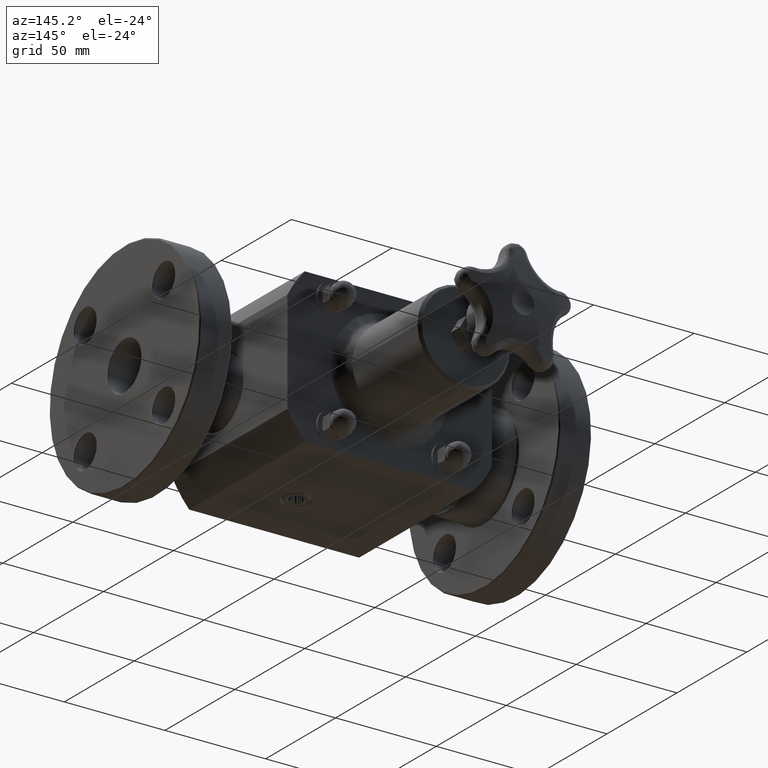
[diagram: clean part render]
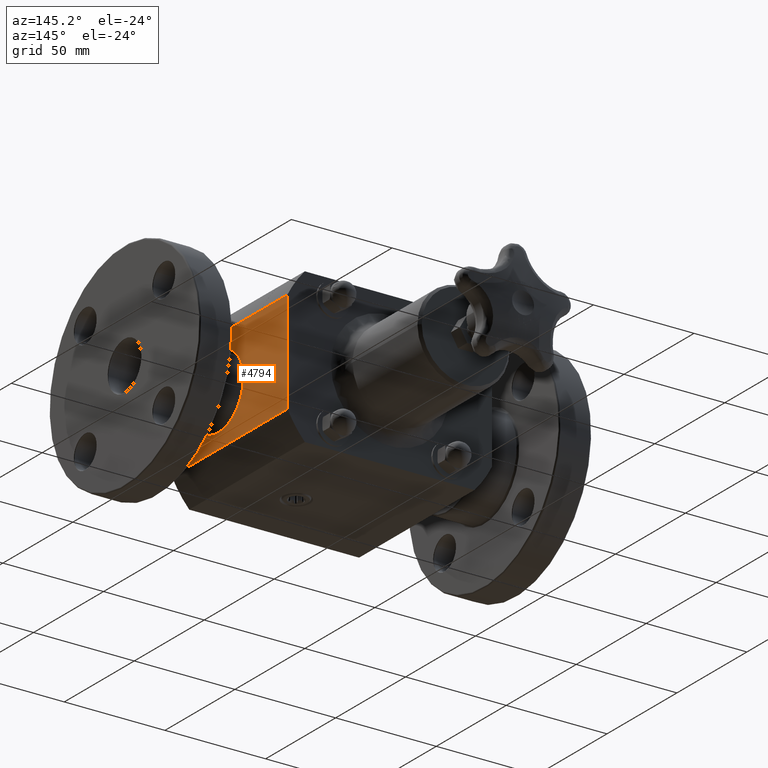
[diagram: same view with one face highlighted and labeled with its STEP entity id]
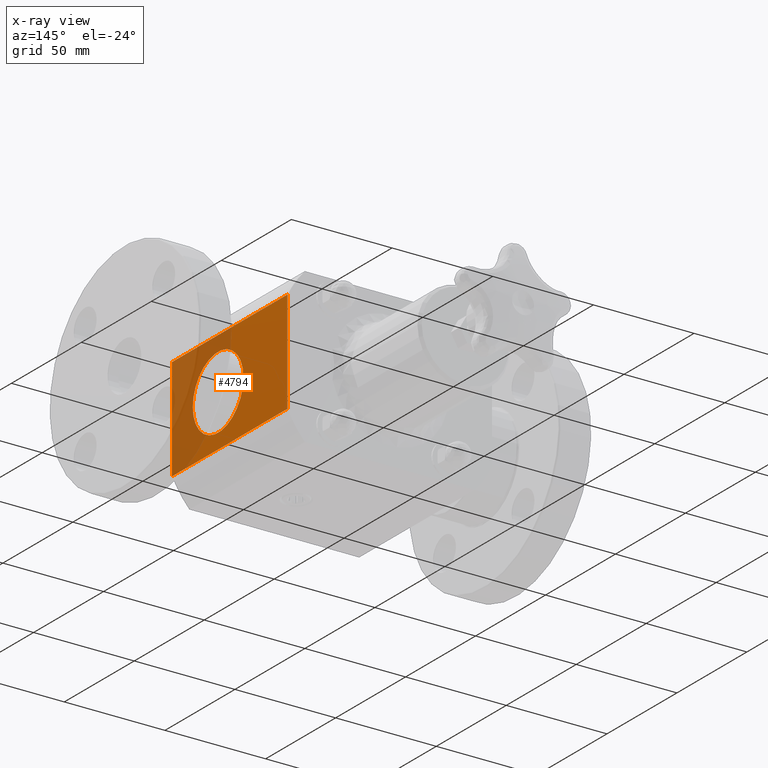
[diagram: x-ray of the same camera — body ghosted, the highlighted face saturated]
A machine part, auxiliary view. The second image highlights one B-rep face of the part: STEP entity #4794.
The next image is the same camera in x-ray: the body ghosted, the highlighted face saturated — about 35% of this face is hidden behind the body in this view.
In plain terms, the highlighted planar face has unit normal (1, 0, 0).
Its self-contained STEP definition (entity closure, byte-faithful):
#4167=CARTESIAN_POINT('',(2.000000000000000,2.500000000000000,-1.003198011361665));
#4168=VERTEX_POINT('',#4167);
#4169=CARTESIAN_POINT('',(2.000000000000000,3.250000000000000,-1.003198011361665));
#4170=VERTEX_POINT('',#4169);
#4171=CARTESIAN_POINT('',(2.000000000000000,2.500000000000000,-1.003198011361665));
#4172=DIRECTION('',(0.0,1.0,0.0));
#4173=VECTOR('',#4172,0.750000000000000);
#4174=LINE('',#4171,#4173);
#4175=EDGE_CURVE('',#4168,#4170,#4174,.T.);
#4219=CARTESIAN_POINT('',(2.000000000000000,2.500000000000000,1.003198011361667));
#4220=VERTEX_POINT('',#4219);
#4228=CARTESIAN_POINT('',(2.000000000000000,3.250000000000000,1.003198011361667));
#4229=VERTEX_POINT('',#4228);
#4230=CARTESIAN_POINT('',(2.000000000000000,3.250000000000000,1.003198011361667));
#4231=DIRECTION('',(0.0,-1.0,0.0));
#4232=VECTOR('',#4231,0.750000000000000);
#4233=LINE('',#4230,#4232);
#4234=EDGE_CURVE('',#4229,#4220,#4233,.T.);
#4533=CARTESIAN_POINT('',(2.0,2.500000000000000,-1.004312700308026));
#4534=VERTEX_POINT('',#4533);
#4535=CARTESIAN_POINT('',(2.0,2.500000000000000,-1.004312700308026));
#4536=DIRECTION('',(0.0,0.0,1.0));
#4537=VECTOR('',#4536,0.001114688946361);
#4538=LINE('',#4535,#4537);
#4539=EDGE_CURVE('',#4534,#4168,#4538,.T.);
#4721=CARTESIAN_POINT('',(2.0,2.012500000000000,8.725608E-017));
#4722=VERTEX_POINT('',#4721);
#4723=CARTESIAN_POINT('',(2.0,1.300000000000000,0.0));
#4724=DIRECTION('',(1.0,0.0,0.0));
#4725=DIRECTION('',(0.0,-1.0,0.0));
#4726=AXIS2_PLACEMENT_3D('',#4723,#4724,#4725);
#4727=CIRCLE('',#4726,0.712500000000000);
#4728=EDGE_CURVE('',#4722,#4722,#4727,.T.);
#4745=CARTESIAN_POINT('',(2.0,1.156179E-044,-1.004312700308026));
#4746=DIRECTION('',(1.0,0.0,0.0));
#4747=DIRECTION('',(0.0,0.0,-1.0));
#4748=AXIS2_PLACEMENT_3D('',#4745,#4746,#4747);
#4749=PLANE('',#4748);
#4750=ORIENTED_EDGE('',*,*,#4539,.T.);
#4751=ORIENTED_EDGE('',*,*,#4175,.T.);
#4752=CARTESIAN_POINT('',(2.000000000000000,3.250000000000000,-1.003198011361665));
#4753=DIRECTION('',(0.0,0.0,1.0));
#4754=VECTOR('',#4753,2.006396022723332);
#4755=LINE('',#4752,#4754);
#4756=EDGE_CURVE('',#4170,#4229,#4755,.T.);
#4757=ORIENTED_EDGE('',*,*,#4756,.T.);
#4758=ORIENTED_EDGE('',*,*,#4234,.T.);
#4759=CARTESIAN_POINT('',(2.0,2.500000000000000,1.004312700308026));
#4760=VERTEX_POINT('',#4759);
#4761=CARTESIAN_POINT('',(2.0,2.500000000000000,1.003198011361667));
#4762=DIRECTION('',(0.0,0.0,1.0));
#4763=VECTOR('',#4762,0.001114688946359);
#4764=LINE('',#4761,#4763);
#4765=EDGE_CURVE('',#4220,#4760,#4764,.T.);
#4766=ORIENTED_EDGE('',*,*,#4765,.T.);
#4767=CARTESIAN_POINT('',(2.0,1.156179E-044,1.004312700308026));
#4768=VERTEX_POINT('',#4767);
#4769=CARTESIAN_POINT('',(2.0,1.156179E-044,1.004312700308026));
#4770=DIRECTION('',(0.0,1.0,0.0));
#4771=VECTOR('',#4770,2.500000000000000);
#4772=LINE('',#4769,#4771);
#4773=EDGE_CURVE('',#4768,#4760,#4772,.T.);
#4774=ORIENTED_EDGE('',*,*,#4773,.F.);
#4775=CARTESIAN_POINT('',(2.0,1.156179E-044,-1.004312700308026));
#4776=VERTEX_POINT('',#4775);
#4777=CARTESIAN_POINT('',(2.0,1.156179E-044,-1.004312700308026));
#4778=DIRECTION('',(0.0,0.0,1.0));
#4779=VECTOR('',#4778,2.008625400616053);
#4780=LINE('',#4777,#4779);
#4781=EDGE_CURVE('',#4776,#4768,#4780,.T.);
#4782=ORIENTED_EDGE('',*,*,#4781,.F.);
#4783=CARTESIAN_POINT('',(2.0,1.156179E-044,-1.004312700308026));
#4784=DIRECTION('',(0.0,1.0,0.0));
#4785=VECTOR('',#4784,2.500000000000000);
#4786=LINE('',#4783,#4785);
#4787=EDGE_CURVE('',#4776,#4534,#4786,.T.);
#4788=ORIENTED_EDGE('',*,*,#4787,.T.);
#4789=EDGE_LOOP('',(#4750,#4751,#4757,#4758,#4766,#4774,#4782,#4788));
#4790=FACE_OUTER_BOUND('',#4789,.T.);
#4791=ORIENTED_EDGE('',*,*,#4728,.F.);
#4792=EDGE_LOOP('',(#4791));
#4793=FACE_BOUND('',#4792,.T.);
#4794=ADVANCED_FACE('',(#4790,#4793),#4749,.T.);